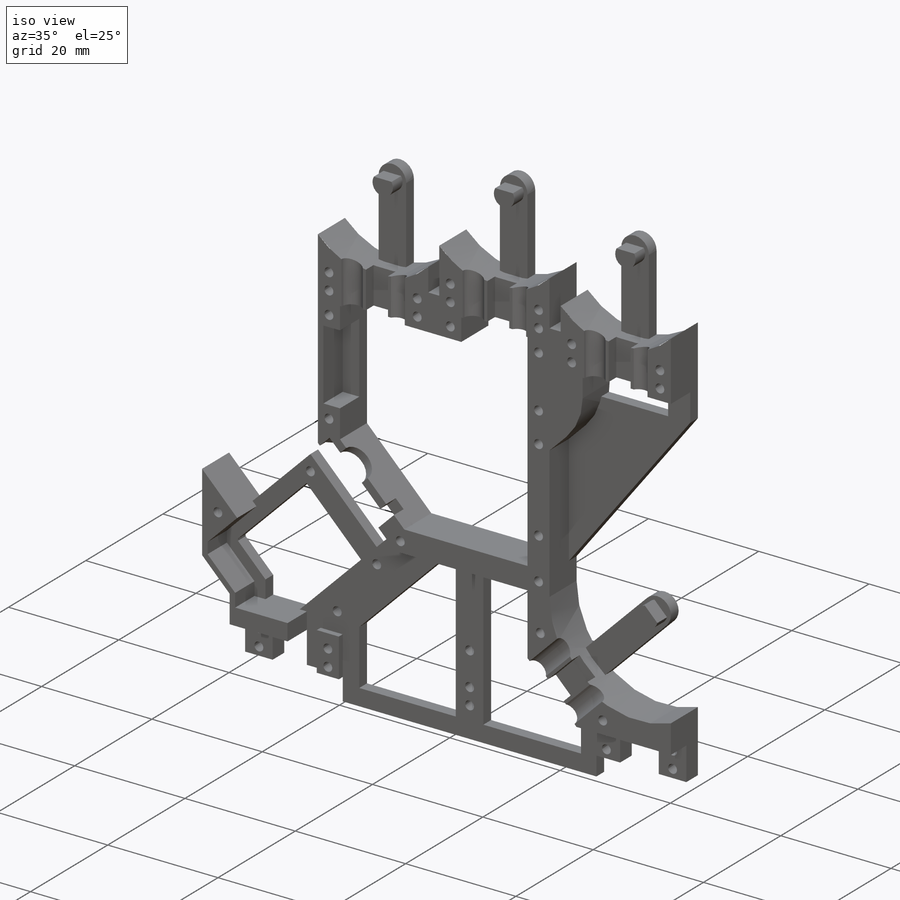
[diagram: iso view]
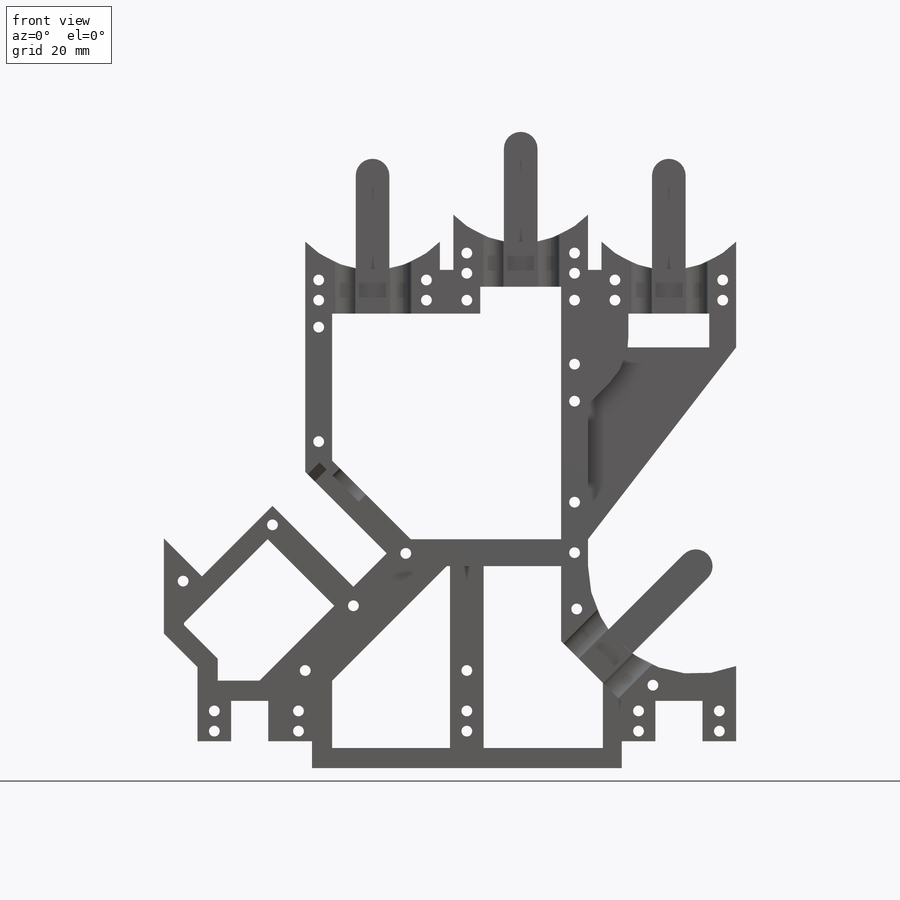
[diagram: front view]
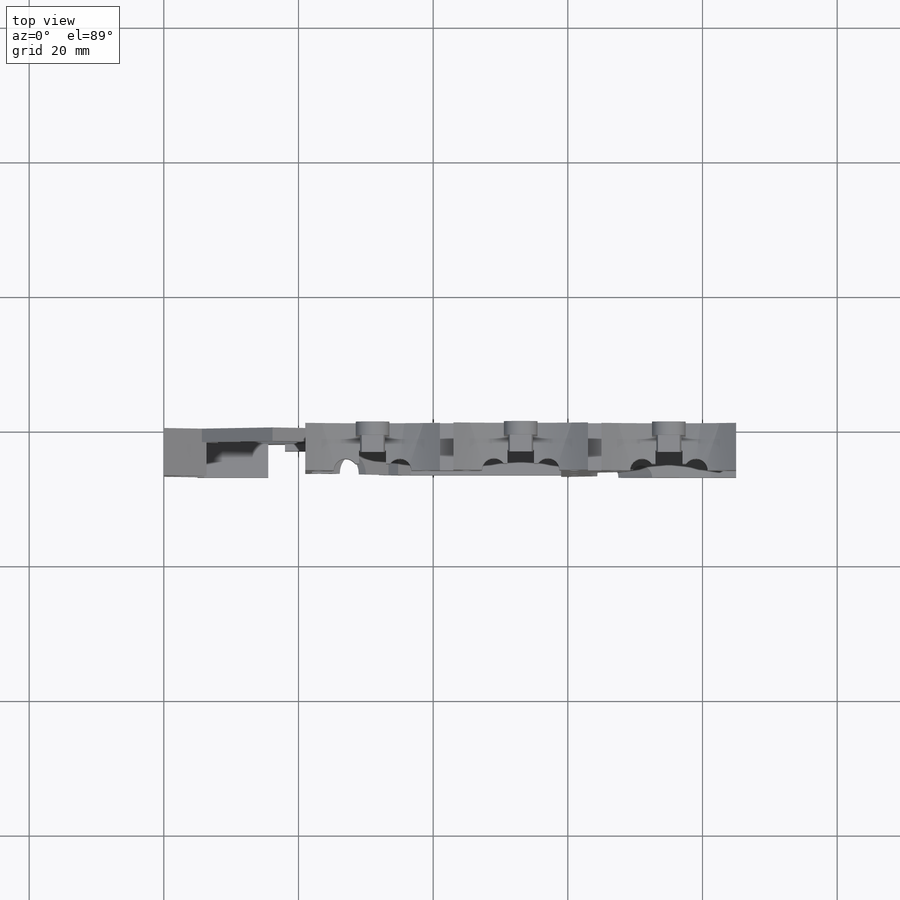
[diagram: top view]
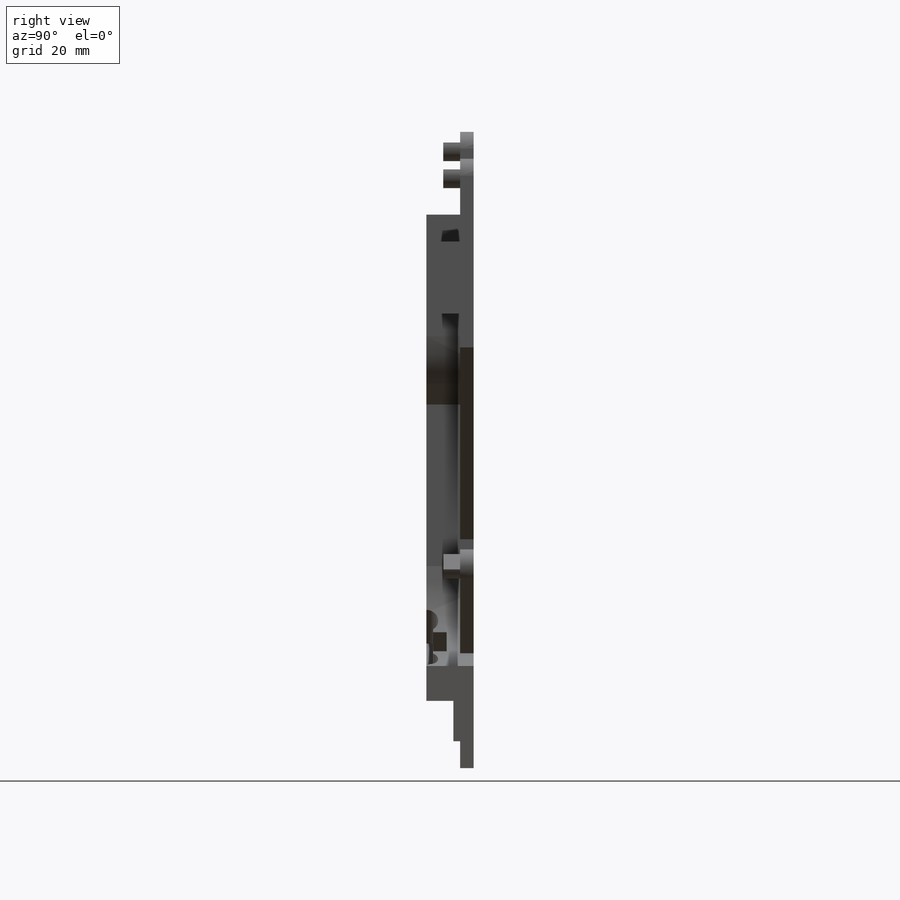
[diagram: right view]
SOLIDWORKS PART (.sldprt)
format: sldprt  version: not decoded by parser v0  size: 1,545,728 bytes
history: native  units: mm
features: sketch x12, cut_extrude x8, extrude x4, material x1, fillet x1 (+17 scaffold rows collapsed; 4 parser-record rows omitted)
feature tree (47):
  scaffold x17  (default folders/planes/origin — collapsed)
  material  "Material <not specified>"
  parser-record x4  (decoder bookkeeping rows leaked as tree rows — omitted from the tree; the rows remain in map.json)
  sketch  "Sketch1"  dims[D1=4.0mm]
  extrude  "Boss-Extrude1"  Depth=2mm
  sketch  "Sketch5"  dims[c1.D1=~0.343106mm c2.D1=135.0deg c3.D1=4.0mm]
  extrude  "Boss-Extrude2"  Depth=7mm
  sketch  "Sketch33"  dims[D1=22.0mm]
  extrude  "Boss-Extrude3"  Depth=2mm
  sketch  "Sketch34"  dims[D1=~9.655684mm]
  extrude  "Boss-Extrude4"  Depth=2.5mm
  sketch  "Sketch10"  dims[D1=2.0mm]
  cut_extrude  "Wire and Tube Canals"  Depth=13mm
  sketch  "Sketch42"  dims[c1.D1=6.0mm c1.D2=5.0mm c2.D1=6.0mm c2.D2=5.0mm c3.D1=6.0mm c3.D2=5.0mm c4.D1=6.0mm c4.D2=5.0mm c5.D1=10.0mm c5.D2=5.0mm c6.D1=7.0mm]
  cut_extrude  "Cut-Extrude3"  Depth=4mm
  fillet  "Fillet1"  Radius=10mm
  sketch  "Sketch35"  dims[D1=~16.439749mm]
  cut_extrude  "Pot Insert1"  Depth=2.5mm
  sketch  "Sketch36"  dims[D1=~9.802116mm]
  cut_extrude  "Pot Hole"  Depth=1.5mm
  sketch  "Sketch43"  dims[D1=7.0mm]
  cut_extrude  "Pot Insert2"  Depth=2.5mm
  sketch  "Sketch3"  dims[D1=~20.696352mm]
  cut_extrude  "Mechanical Screw Holes"  [1 undecoded]
  sketch  "Sketch44"  dims[D1=~38.864573mm]
  cut_extrude  "Electrical Screw Holes"  [1 undecoded]
  sketch  "Sketch45"  dims[D1=4.0mm]
  cut_extrude  "Cut-Extrude4"  Depth=10mm
decode coverage: 23 of 25 modeling features carry decoded parameters
note: ~ marks probable driven/reference dimensions
note: 2 parameter values undecoded
note: suppression state not decoded; provenance and decode notes live in map.json
